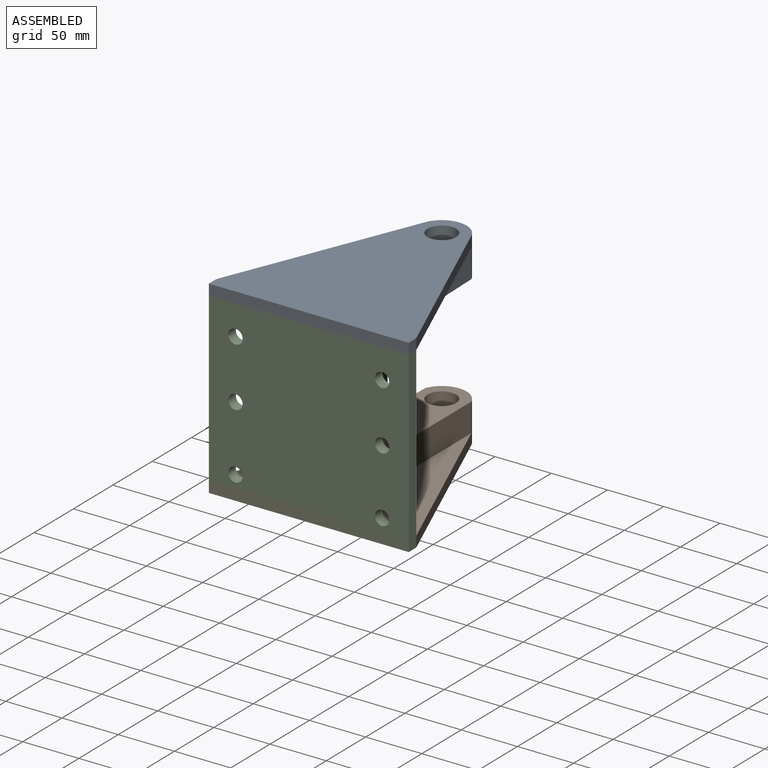
[diagram: assembled view]
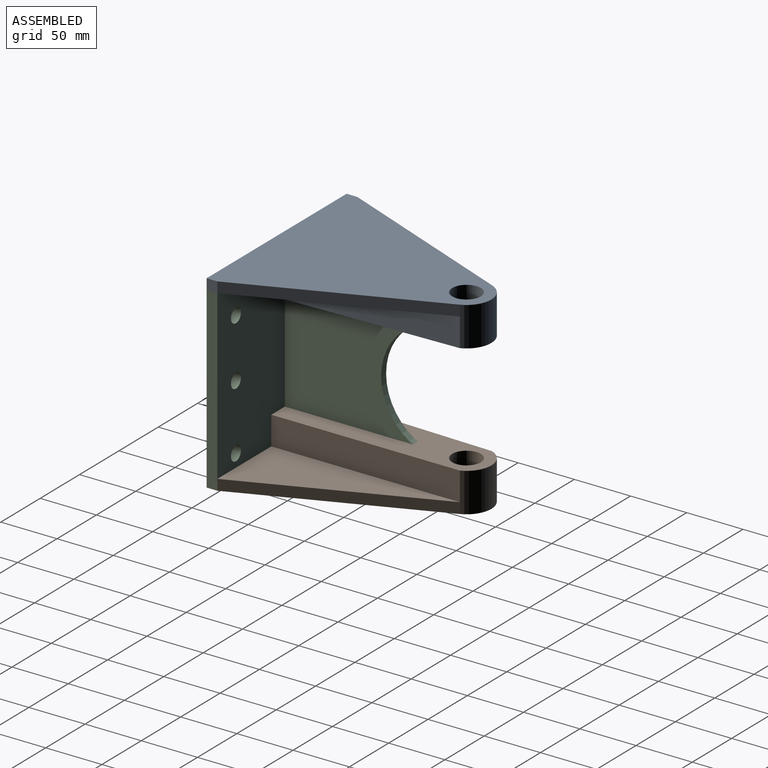
[diagram: assembled view, second angle]
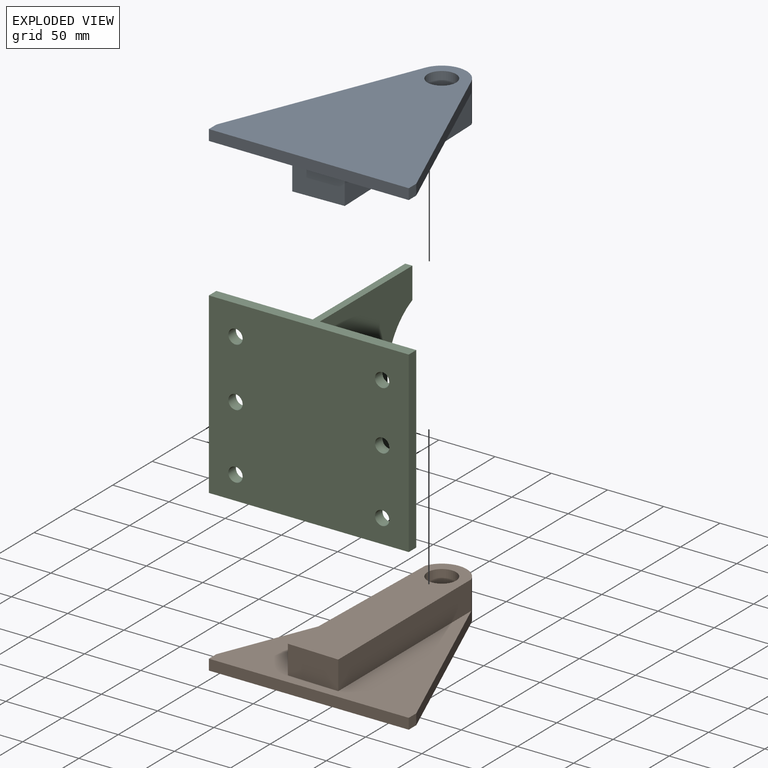
[diagram: exploded view]
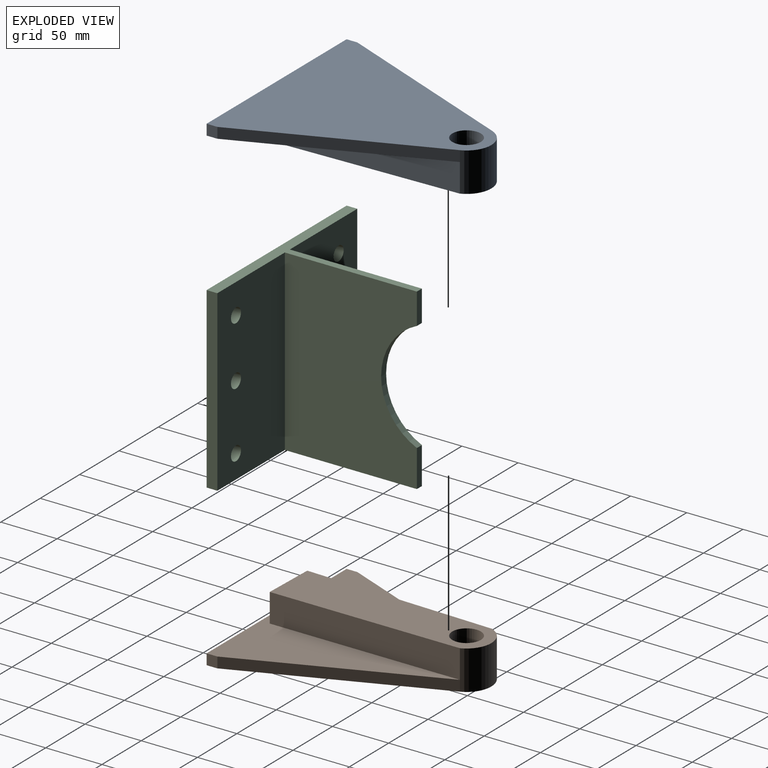
[diagram: exploded view, second angle]
ASSEMBLY  parts=3 mates=2
PART A: 13 faces, bbox 177.8x191x34.9 mm
  f0: plane 177.8x9.53mm, normal (0,-1,0), area 1693.5mm2, adj f1,f5,f6,f7
  f1: plane 9.53x9.53mm, normal (1,0,0), area 90.7mm2, adj f0,f2,f6,f7
  f2: plane 167.77x68.46mm, normal (0.93,0.38,0), area 1725.9mm2, adj f1,f3,f6,f7
  f3: cylinder r=22.08mm len=40.89mm, axis (0,0,-1), area 1825.1mm2, adj f2,f4,f7,f8,f9,f11
  f4: plane 167.77x68.46mm, normal (-0.93,0.38,0), area 1725.9mm2, adj f3,f5,f6,f7
  f5: plane 9.53x9.53mm, normal (-1,0,0), area 90.7mm2, adj f0,f4,f6,f7
  f6: plane 177.8x177.29mm, normal (0,0,1), area 12738mm2, adj f0,f1,f2,f4,f5,f9,f10,f11
  f7: plane 191.03x177.8mm, normal (0,0,-1), area 19935.5mm2, adj f0,f1,f2,f3,f4,f5,f12
  f8: plane 182.84x45.77mm, normal (0,0,1), area 7197.5mm2, adj f3,f9,f10,f11,f12
  f9: plane 169.1x25.4mm, normal (1,0,0), area 4295.1mm2, adj f3,f6,f8,f10
  f10: plane 45.77x25.4mm, normal (-0.03,-1,0), area 1163.1mm2, adj f6,f8,f9,f11
  f11: plane 167.77x25.4mm, normal (-1,0.03,0), area 4263.1mm2, adj f3,f6,f8,f10
  f12: cylinder r=12.73mm len=34.93mm, axis (0,0,-1), area 2792.5mm2, adj f7,f8
PART B: same geometry as A
PART C: 18 faces, bbox 177.8x127x158.8 mm
  f0: plane 177.8x158.75mm, normal (0,-1,0), area 27465.7mm2, adj f4,f5,f6,f7,f12,f13,f14,f15
  f1: plane 27.59x6.35mm, normal (0,1,0), area 175.2mm2, adj f2,f4,f9,f11
  f2: plane 158.75x117.48mm, normal (1,0,0), area 16399.4mm2, adj f1,f3,f4,f6,f10,f11
  f3: plane 158.75x85.73mm, normal (0,1,0), area 13228.8mm2, adj f2,f4,f6,f7,f15,f16,f17
  f4: plane 177.8x127mm, normal (0,0,1), area 2439.5mm2, adj f0,f1,f2,f3,f5,f7,f8,f9
  f5: plane 158.75x9.53mm, normal (-1,0,0), area 1512.1mm2, adj f0,f4,f6,f8
  f6: plane 177.8x127mm, normal (0,0,-1), area 2439.5mm2, adj f0,f2,f3,f5,f7,f8,f9,f10
  f7: plane 158.75x9.53mm, normal (1,0,0), area 1512.1mm2, adj f0,f3,f4,f6
  f8: plane 158.75x85.73mm, normal (0,1,0), area 13228.8mm2, adj f4,f5,f6,f9,f12,f13,f14
  f9: plane 158.75x117.48mm, normal (-1,0,0), area 16399.4mm2, adj f1,f4,f6,f8,f10,f11
  f10: plane 32.97x6.35mm, normal (0,1,0), area 209.4mm2, adj f2,f6,f9,f11
  f11: cylinder r=53.77mm len=98.19mm, axis (1,0,0), area 785.7mm2, adj f1,f2,f9,f10
  f12: cylinder r=6.35mm len=12.7mm, axis (0,1,0), area 380mm2, adj f0,f8
  f13: cylinder r=6.35mm len=12.7mm, axis (0,1,0), area 380mm2, adj f0,f8
  f14: cylinder r=6.35mm len=12.7mm, axis (0,1,0), area 380mm2, adj f0,f8
  f15: cylinder r=6.35mm len=12.7mm, axis (0,1,0), area 380mm2, adj f0,f3
  f16: cylinder r=6.35mm len=12.7mm, axis (0,1,0), area 380mm2, adj f0,f3
  f17: cylinder r=6.35mm len=12.7mm, axis (0,1,0), area 380mm2, adj f0,f3
PLACE A rot(axis=(0,-1,0),180deg) t=(-80.33,-20.36,144.19)mm
PLACE B t=(-148.91,-20.36,-24.09)mm
PLACE C t=(-114.62,-20.36,55.29)mm
MATE fastened C.f6 <-> B.f7  axis (0,0,-1) through (-114.62,-29.89,-24.09)mm
MATE fastened C.f4 <-> A.f6  axis (0,0,1) through (-114.62,-29.89,134.66)mm
